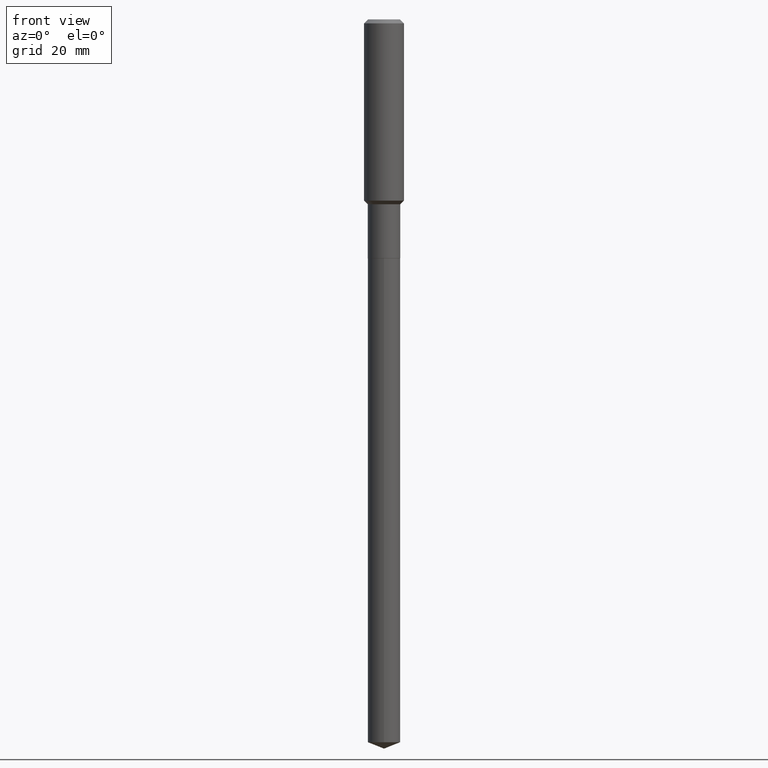
[diagram: clean part render]
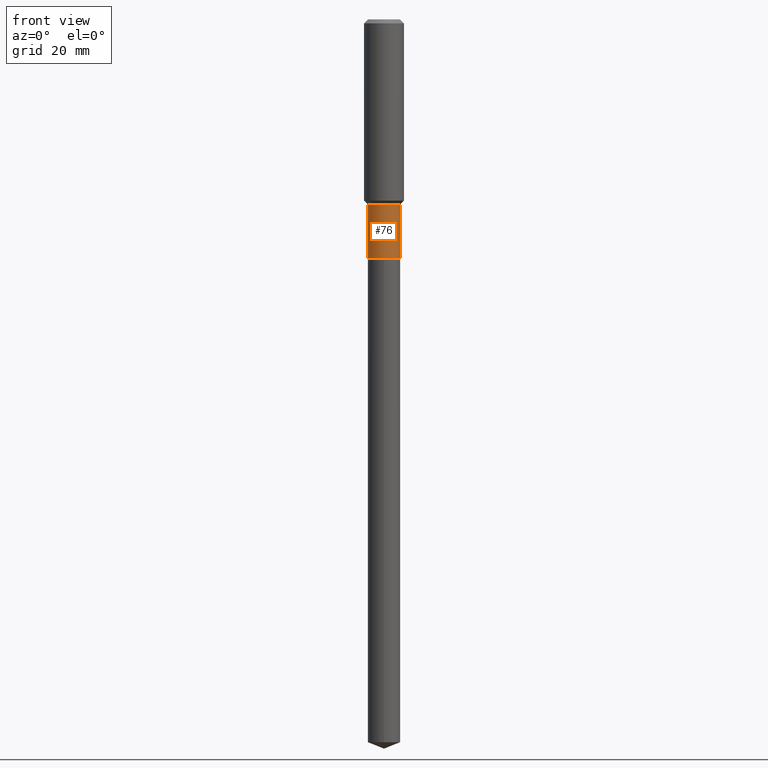
[diagram: same view with one face highlighted and labeled with its STEP entity id]
A machine part, front view. The second image highlights one B-rep face of the part: STEP entity #76.
In plain terms, the highlighted cylindrical surface (edge-blend (fillet) strip) has radius 3.2639 mm, axis along (-0, 0, 1).
Its self-contained STEP definition (entity closure, byte-faithful):
#10 = EDGE_CURVE ( 'NONE', #302, #418, #253, .T. ) ;
#45 = DIRECTION ( 'NONE',  ( 1.000000000000000000, -6.982962677686267499E-15, 4.876176775795935793E-29 ) ) ;
#48 = CARTESIAN_POINT ( 'NONE',  ( 0.1285000000000000031, -7.465136250580526228E-15, -1.881099999999999994 ) ) ;
#54 = AXIS2_PLACEMENT_3D ( 'NONE', #389, #462, #464 ) ;
#76 = ADVANCED_FACE ( 'NONE', ( #473 ), #84, .T. ) ;
#81 = ORIENTED_EDGE ( 'NONE', *, *, #324, .F. ) ;
#84 = CYLINDRICAL_SURFACE ( 'NONE', #397, 0.1284999999999999754 ) ;
#100 = CIRCLE ( 'NONE', #310, 0.1285000000000000031 ) ;
#104 = DIRECTION ( 'NONE',  ( -2.445468806185136877E-29, 3.491481338843145188E-15, 1.000000000000000000 ) ) ;
#106 = LINE ( 'NONE', #486, #457 ) ;
#124 = DIRECTION ( 'NONE',  ( -2.445468806185136597E-29, 3.491481338843145583E-15, 1.000000000000000000 ) ) ;
#130 = CARTESIAN_POINT ( 'NONE',  ( 0.000000000000000000, 0.000000000000000000, 0.000000000000000000 ) ) ;
#145 = EDGE_CURVE ( 'NONE', #490, #418, #436, .T. ) ;
#199 = VERTEX_POINT ( 'NONE', #445 ) ;
#220 = EDGE_LOOP ( 'NONE', ( #81, #346, #372, #256 ) ) ;
#221 = CARTESIAN_POINT ( 'NONE',  ( -0.1284999999999999476, -4.915107809412192040E-15, -1.457399999999999585 ) ) ;
#233 = DIRECTION ( 'NONE',  ( -2.445468806185136597E-29, 3.491481338843145583E-15, 1.000000000000000000 ) ) ;
#253 = CIRCLE ( 'NONE', #54, 0.1284999999999999476 ) ;
#256 = ORIENTED_EDGE ( 'NONE', *, *, #10, .F. ) ;
#278 = CARTESIAN_POINT ( 'NONE',  ( 0.1284999999999999754, -8.973107040826851776E-16, 6.265887156897776261E-30 ) ) ;
#302 = VERTEX_POINT ( 'NONE', #221 ) ;
#310 = AXIS2_PLACEMENT_3D ( 'NONE', #419, #124, #461 ) ;
#324 = EDGE_CURVE ( 'NONE', #199, #302, #106, .T. ) ;
#342 = CARTESIAN_POINT ( 'NONE',  ( 0.1284999999999999476, -5.985795607312684151E-15, -1.457399999999999585 ) ) ;
#346 = ORIENTED_EDGE ( 'NONE', *, *, #463, .T. ) ;
#354 = VECTOR ( 'NONE', #104, 39.37007874015748143 ) ;
#364 = DIRECTION ( 'NONE',  ( -2.445468806185136877E-29, 3.491481338843145188E-15, 1.000000000000000000 ) ) ;
#372 = ORIENTED_EDGE ( 'NONE', *, *, #145, .T. ) ;
#389 = CARTESIAN_POINT ( 'NONE',  ( 3.564026238134217043E-29, -5.088484903229998973E-15, -1.457399999999999585 ) ) ;
#397 = AXIS2_PLACEMENT_3D ( 'NONE', #130, #233, #45 ) ;
#418 = VERTEX_POINT ( 'NONE', #342 ) ;
#419 = CARTESIAN_POINT ( 'NONE',  ( 4.600171371314860158E-29, -6.567825546497841051E-15, -1.881099999999999994 ) ) ;
#436 = LINE ( 'NONE', #278, #354 ) ;
#445 = CARTESIAN_POINT ( 'NONE',  ( -0.1285000000000000031, -4.915107809412192040E-15, -1.881099999999999994 ) ) ;
#457 = VECTOR ( 'NONE', #364, 39.37007874015748143 ) ;
#461 = DIRECTION ( 'NONE',  ( 1.000000000000000000, -6.982962677686269077E-15, 0.000000000000000000 ) ) ;
#462 = DIRECTION ( 'NONE',  ( -2.445468806185136597E-29, 3.491481338843145583E-15, 1.000000000000000000 ) ) ;
#463 = EDGE_CURVE ( 'NONE', #199, #490, #100, .T. ) ;
#464 = DIRECTION ( 'NONE',  ( 1.000000000000000000, -6.982962677686272233E-15, 0.000000000000000000 ) ) ;
#473 = FACE_OUTER_BOUND ( 'NONE', #220, .T. ) ;
#486 = CARTESIAN_POINT ( 'NONE',  ( -0.1284999999999999754, 9.130474154517285637E-16, -6.320831590977552957E-30 ) ) ;
#490 = VERTEX_POINT ( 'NONE', #48 ) ;